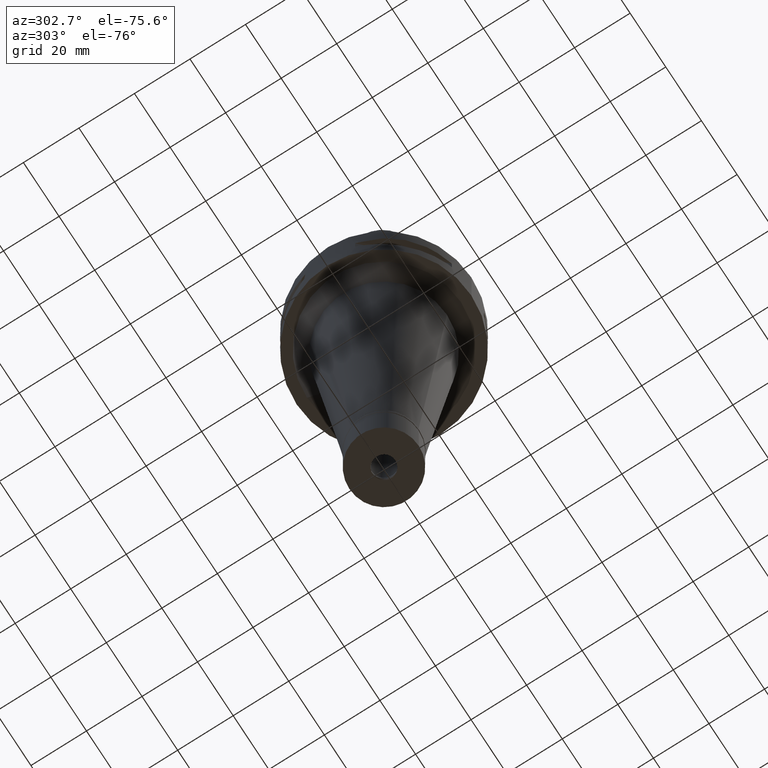
[diagram: clean part render]
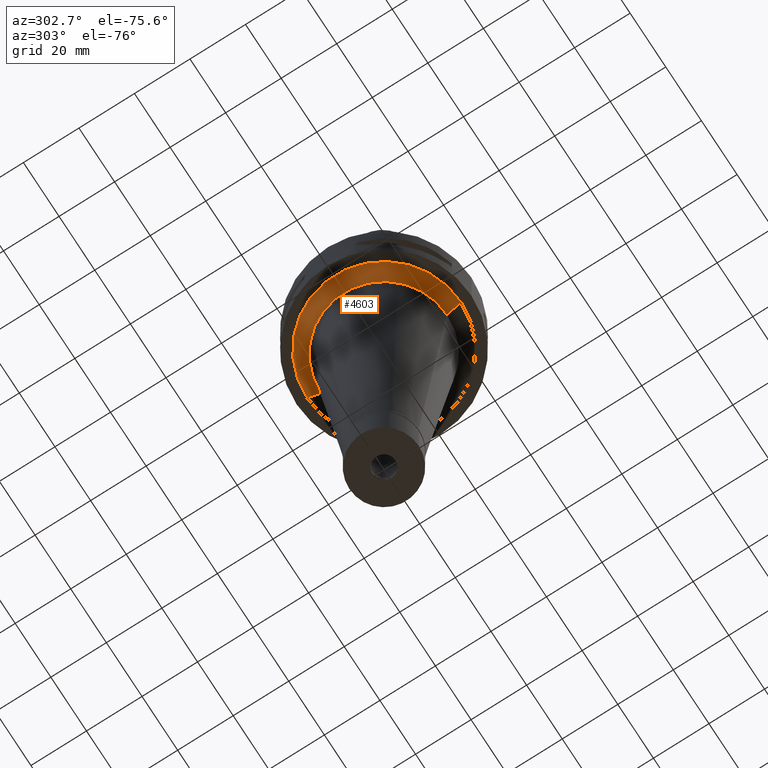
[diagram: same view with one face highlighted and labeled with its STEP entity id]
A machine part, auxiliary view. The second image highlights one B-rep face of the part: STEP entity #4603.
In plain terms, the highlighted conical surface has half-angle 45 deg.
Its self-contained STEP definition (entity closure, byte-faithful):
#84 = CARTESIAN_POINT ( 'NONE',  ( 0.0000000000000000000, 27.70992703347999964, -22.00000000000000000 ) ) ;
#140 = DIRECTION ( 'NONE',  ( 0.0000000000000000000, -1.000000000000000000, 0.0000000000000000000 ) ) ;
#286 = CARTESIAN_POINT ( 'NONE',  ( 0.0000000000000000000, 27.70992703347999964, -22.00000000000000000 ) ) ;
#305 = AXIS2_PLACEMENT_3D ( 'NONE', #2491, #547, #2112 ) ;
#435 = CIRCLE ( 'NONE', #3320, 27.70992703347999964 ) ;
#540 = VECTOR ( 'NONE', #2978, 1000.000000000000000 ) ;
#547 = DIRECTION ( 'NONE',  ( 0.0000000000000000000, 0.0000000000000000000, 1.000000000000000000 ) ) ;
#931 = FACE_OUTER_BOUND ( 'NONE', #3767, .T. ) ;
#984 = EDGE_CURVE ( 'NONE', #1915, #2410, #435, .T. ) ;
#1143 = ORIENTED_EDGE ( 'NONE', *, *, #2376, .F. ) ;
#1226 = EDGE_CURVE ( 'NONE', #4246, #1398, #3815, .T. ) ;
#1398 = VERTEX_POINT ( 'NONE', #4015 ) ;
#1551 = CONICAL_SURFACE ( 'NONE', #305, 25.20992703347999964, 0.7853981633972997312 ) ;
#1560 = CARTESIAN_POINT ( 'NONE',  ( 0.0000000000000000000, -22.70992703347999964, -27.00000000000000000 ) ) ;
#1643 = CARTESIAN_POINT ( 'NONE',  ( 0.0000000000000000000, 0.0000000000000000000, -22.00000000000000000 ) ) ;
#1915 = VERTEX_POINT ( 'NONE', #3374 ) ;
#2112 = DIRECTION ( 'NONE',  ( 0.0000000000000000000, 1.000000000000000000, 0.0000000000000000000 ) ) ;
#2143 = ORIENTED_EDGE ( 'NONE', *, *, #1226, .F. ) ;
#2376 = EDGE_CURVE ( 'NONE', #1915, #4246, #3703, .T. ) ;
#2402 = DIRECTION ( 'NONE',  ( 0.0000000000000000000, 0.0000000000000000000, -1.000000000000000000 ) ) ;
#2407 = AXIS2_PLACEMENT_3D ( 'NONE', #3746, #3715, #140 ) ;
#2410 = VERTEX_POINT ( 'NONE', #286 ) ;
#2491 = CARTESIAN_POINT ( 'NONE',  ( 0.0000000000000000000, 0.0000000000000000000, -24.50000000000000000 ) ) ;
#2929 = CARTESIAN_POINT ( 'NONE',  ( 0.0000000000000000000, -27.70992703347999964, -22.00000000000000000 ) ) ;
#2978 = DIRECTION ( 'NONE',  ( 0.0000000000000000000, 0.7071067811865969777, -0.7071067811864980568 ) ) ;
#3193 = LINE ( 'NONE', #84, #3837 ) ;
#3215 = ORIENTED_EDGE ( 'NONE', *, *, #984, .T. ) ;
#3320 = AXIS2_PLACEMENT_3D ( 'NONE', #1643, #2402, #3948 ) ;
#3374 = CARTESIAN_POINT ( 'NONE',  ( 0.0000000000000000000, -27.70992703347999964, -22.00000000000000000 ) ) ;
#3703 = LINE ( 'NONE', #2929, #540 ) ;
#3715 = DIRECTION ( 'NONE',  ( 0.0000000000000000000, 0.0000000000000000000, -1.000000000000000000 ) ) ;
#3746 = CARTESIAN_POINT ( 'NONE',  ( 0.0000000000000000000, 0.0000000000000000000, -27.00000000000000000 ) ) ;
#3767 = EDGE_LOOP ( 'NONE', ( #2143, #1143, #3215, #4205 ) ) ;
#3815 = CIRCLE ( 'NONE', #2407, 22.70992703347999964 ) ;
#3837 = VECTOR ( 'NONE', #4260, 1000.000000000000000 ) ;
#3948 = DIRECTION ( 'NONE',  ( 0.0000000000000000000, -1.000000000000000000, 0.0000000000000000000 ) ) ;
#4015 = CARTESIAN_POINT ( 'NONE',  ( 0.0000000000000000000, 22.70992703347999964, -27.00000000000000000 ) ) ;
#4205 = ORIENTED_EDGE ( 'NONE', *, *, #4716, .T. ) ;
#4246 = VERTEX_POINT ( 'NONE', #1560 ) ;
#4260 = DIRECTION ( 'NONE',  ( 0.0000000000000000000, -0.7071067811865969777, -0.7071067811864980568 ) ) ;
#4603 = ADVANCED_FACE ( 'NONE', ( #931 ), #1551, .T. ) ;
#4716 = EDGE_CURVE ( 'NONE', #2410, #1398, #3193, .T. ) ;